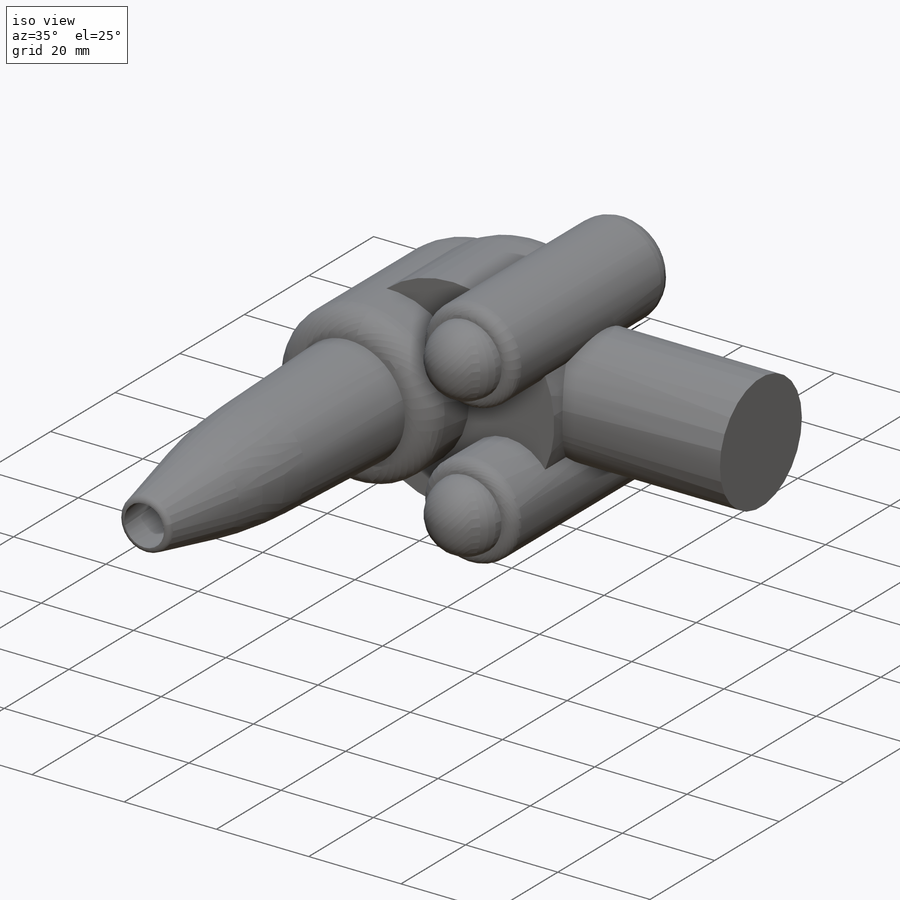
[diagram: iso view]
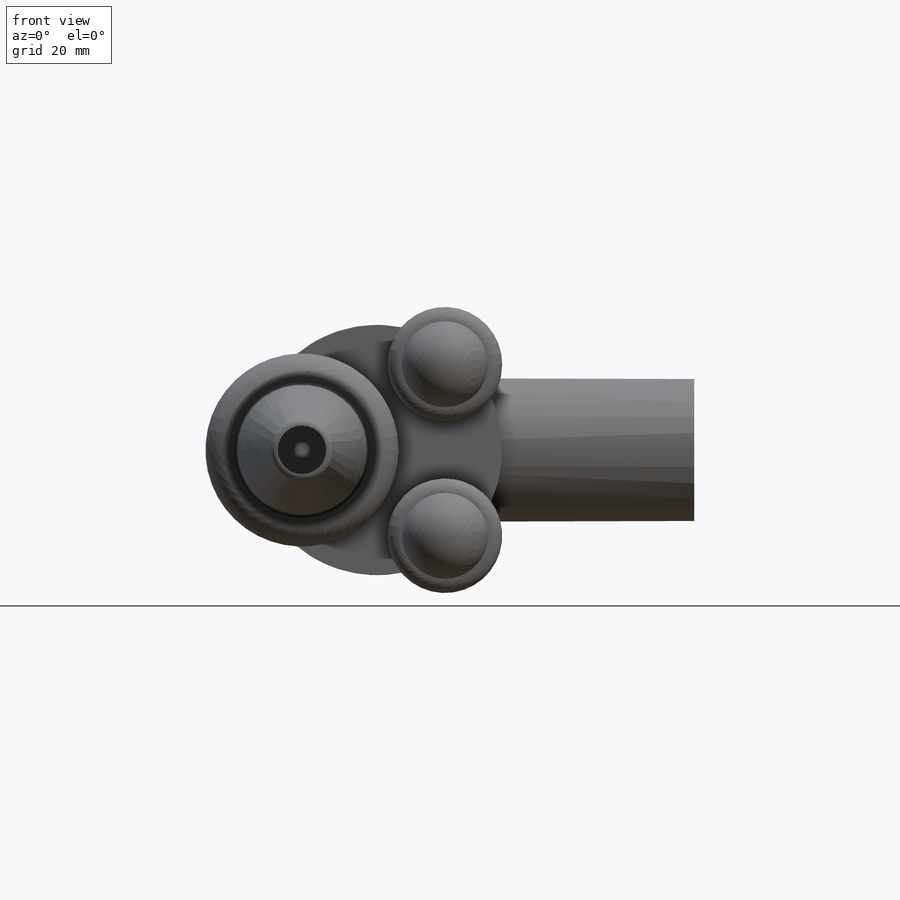
[diagram: front view]
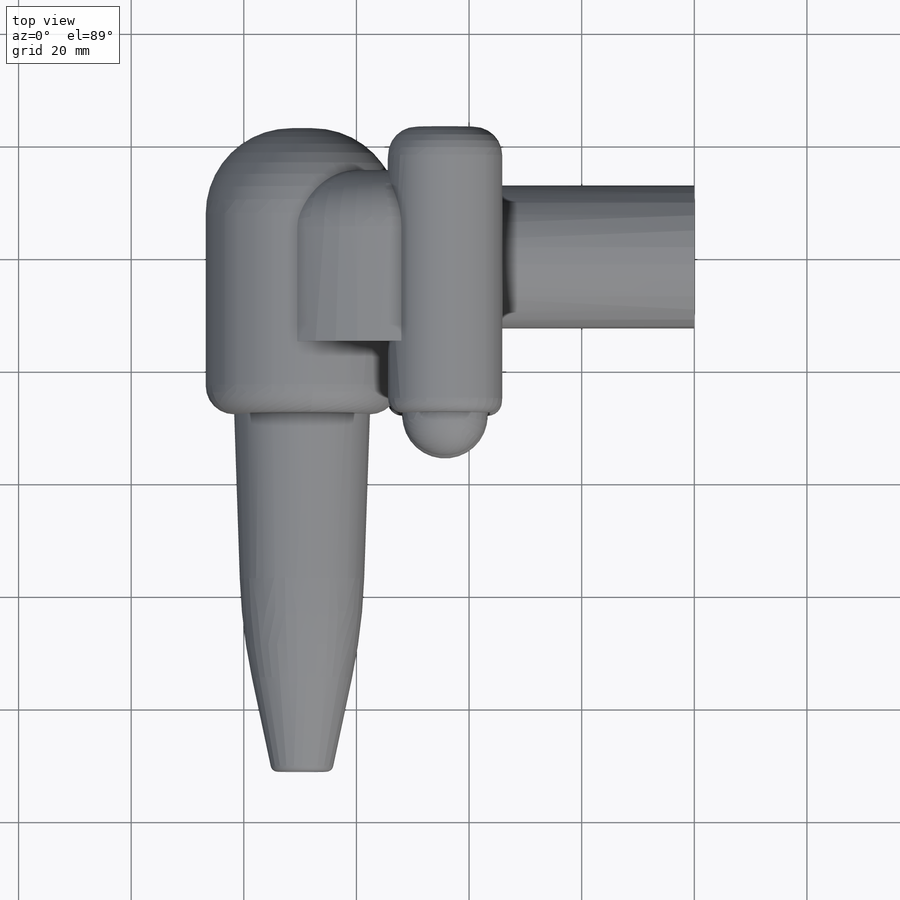
[diagram: top view]
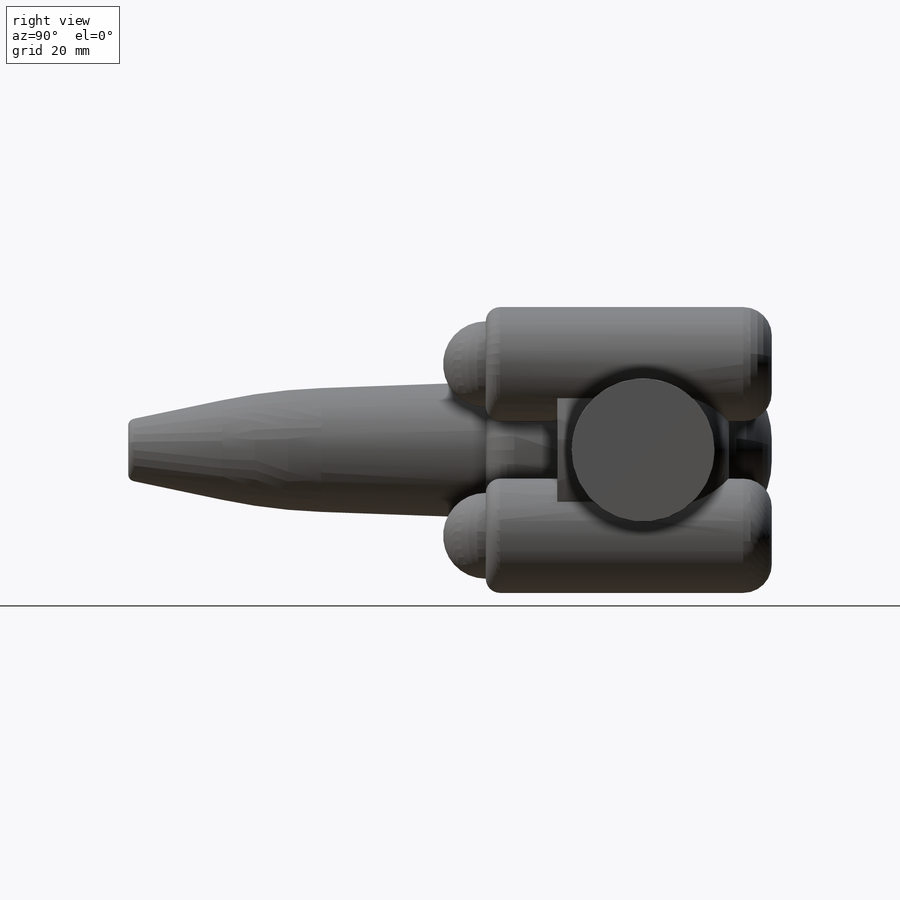
[diagram: right view]
SOLIDWORKS PART (.sldprt)
format: sldprt  version: not decoded by parser v0  size: 447,488 bytes
history: native  units: mm
features: fillet x8, sketch x6, extrude x4, material x1, revolve x1, chamfer x1, cut_extrude x1 (+13 scaffold rows collapsed)
feature tree (35):
  scaffold x13  (default folders/planes/origin — collapsed)
  material  "Material <not specified>"
  sketch  "Sketch1"  dims[D1=25.4mm]
  extrude  "Boss-Extrude1"  Depth=38.1mm
  sketch  "Sketch2"  dims[D1=44.45mm]
  extrude  "Boss-Extrude2"  Depth=30.48mm
  sketch  "Sketch3"  dims[D3=20.32mm D4=34.29mm D1=15.24mm D2=10.16mm D5=25.4mm]
  extrude  "Boss-Extrude3"  Depth=12.7mm
  fillet  "Fillet1"  Radius=5.08mm
  fillet  "Fillet2"  Radius=15.24mm
  fillet  "Fillet3"  Radius=10.16mm
  fillet  "Fillet4"  Radius=2.54mm
  fillet  "Fillet5"  Radius=5.08mm
  sketch  "Sketch4"
  revolve  "Revolve1"  Angle=360deg
  sketch  "Sketch5"
  extrude  "Boss-Extrude4"  Depth=63.5mm
  chamfer  "Chamfer1"  Distance=25.4mm Angle=10deg
  fillet  "Fillet6"  Radius=101.6mm
  fillet  "Fillet7"  Radius=1.27mm
  sketch  "Sketch6"
  cut_extrude  "Cut-Extrude1"  Depth=96.52mm
  fillet  "Fillet8"  Radius=6.35mm
decode coverage: 18 of 21 modeling features carry decoded parameters
note: suppression state not decoded; provenance and decode notes live in map.json
